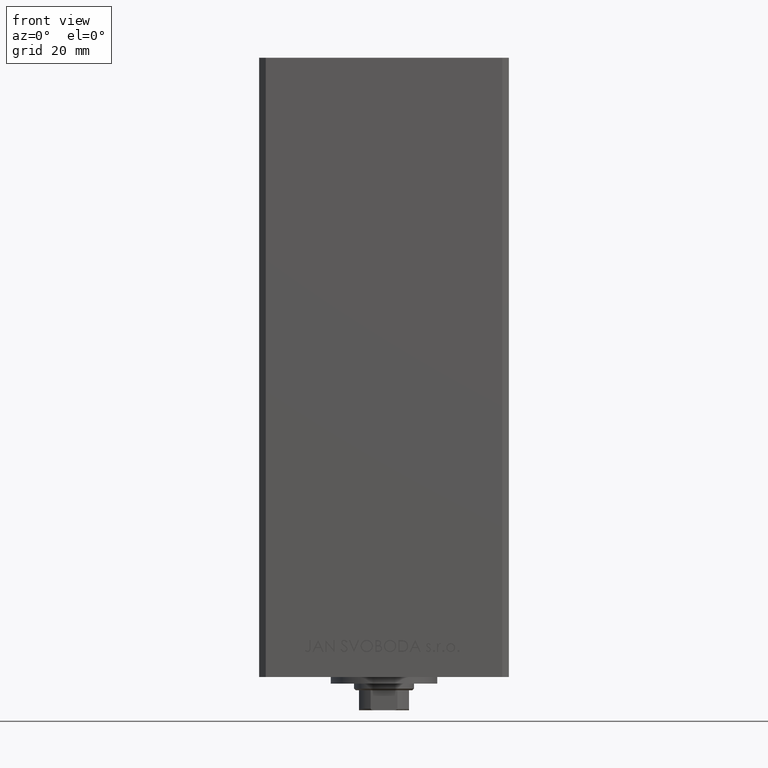
[diagram: clean part render]
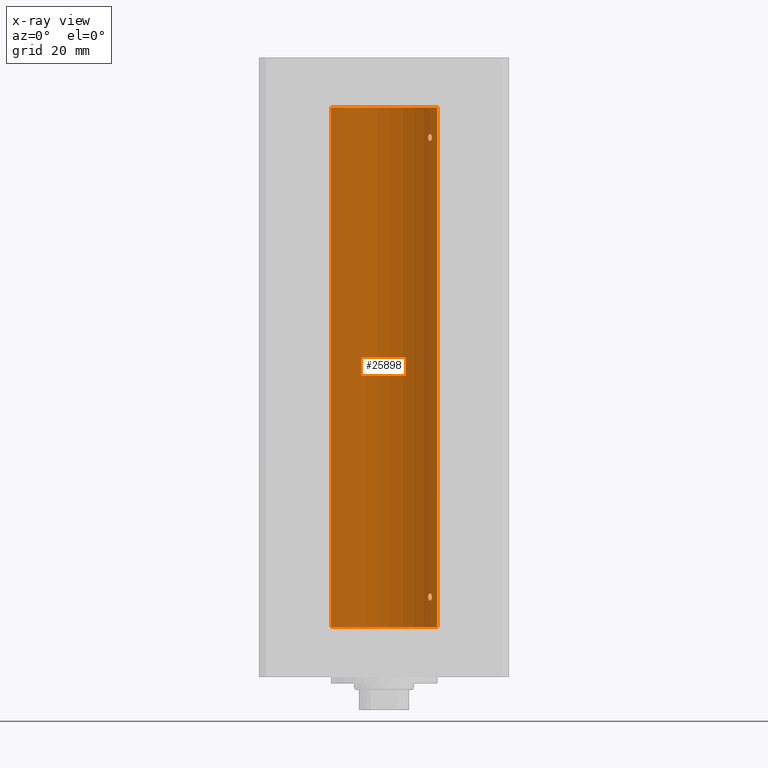
[diagram: x-ray — body ghosted, one internal face saturated and labeled with its STEP entity id]
A machine part, front view, then the same camera in x-ray: the body is ghosted and one INTERNAL B-rep face — a face not visible from any outside direction — is saturated and labeled: STEP entity #25898.
In plain terms, the highlighted cylindrical surface (partial cylindrical patch) has radius 16 mm, axis along (-0, -0, -1).
Its self-contained STEP definition (entity closure, byte-faithful):
#779 = VERTEX_POINT ( 'NONE', #909 ) ;
#909 = CARTESIAN_POINT ( 'NONE',  ( 14.38749456993875953, 6.999999999998769873, 8.999999999999467093 ) ) ;
#1133 = CARTESIAN_POINT ( 'NONE',  ( 13.55739033881265065, 8.499771822136686694, 9.902983336413296200 ) ) ;
#1275 = CARTESIAN_POINT ( 'NONE',  ( -16.00000000000000000, 0.000000000000000000, 156.0000000000000000 ) ) ;
#2039 = CARTESIAN_POINT ( 'NONE',  ( 13.32443414199769194, 8.857985377928093484, 146.4686058303161360 ) ) ;
#2091 = ORIENTED_EDGE ( 'NONE', *, *, #33092, .T. ) ;
#2278 = CARTESIAN_POINT ( 'NONE',  ( 14.38374727663542707, 7.007716049903077504, 146.8576079294365115 ) ) ;
#2762 = CARTESIAN_POINT ( 'NONE',  ( 13.77746685470184929, 8.136441676695655545, 146.0017131429554240 ) ) ;
#2853 = CARTESIAN_POINT ( 'NONE',  ( 13.37714181818049575, 8.778635597591465611, 8.359554766746297716 ) ) ;
#2965 = VECTOR ( 'NONE', #41372, 1000.000000000000000 ) ;
#3121 = EDGE_CURVE ( 'NONE', #779, #13682, #12109, .T. ) ;
#3208 = CYLINDRICAL_SURFACE ( 'NONE', #11624, 16.00000000000000000 ) ;
#3246 = ORIENTED_EDGE ( 'NONE', *, *, #34837, .F. ) ;
#3639 = CARTESIAN_POINT ( 'NONE',  ( 14.38749456993875775, 6.999999999998771649, 146.9999999999994600 ) ) ;
#4106 = CARTESIAN_POINT ( 'NONE',  ( 14.38749456993875775, 6.999999999998771649, 146.9999999999994600 ) ) ;
#5917 = VERTEX_POINT ( 'NONE', #42565 ) ;
#6016 = CARTESIAN_POINT ( 'NONE',  ( 14.35867515080208712, 7.058999333127631282, 146.6544211985381310 ) ) ;
#6340 = CARTESIAN_POINT ( 'NONE',  ( 14.27574973237574696, 7.225997637813494023, 8.353078210746339494 ) ) ;
#6501 = CARTESIAN_POINT ( 'NONE',  ( 13.22875655532295802, 8.999999999999998224, 146.8570262609357542 ) ) ;
#6565 = VERTEX_POINT ( 'NONE', #1275 ) ;
#7066 = CARTESIAN_POINT ( 'NONE',  ( 14.38749456993875953, 6.999999999998769873, 8.999999999999467093 ) ) ;
#7567 = CARTESIAN_POINT ( 'NONE',  ( 14.38749456993828879, 7.000000000000026645, 8.929291109518763037 ) ) ;
#7815 = CARTESIAN_POINT ( 'NONE',  ( 14.38374727663542707, 7.007716049903074840, 8.857607929436484895 ) ) ;
#7821 = CARTESIAN_POINT ( 'NONE',  ( 13.22875655532295092, 8.999999999999994671, 147.1426595155012649 ) ) ;
#8188 = DIRECTION ( 'NONE',  ( 1.000000000000000000, 0.000000000000000000, 0.000000000000000000 ) ) ;
#8368 = CARTESIAN_POINT ( 'NONE',  ( 14.12440581436493225, 7.519967855344579455, 9.916845667547992349 ) ) ;
#9333 = VERTEX_POINT ( 'NONE', #36156 ) ;
#9427 = DIRECTION ( 'NONE',  ( -0.000000000000000000, -0.000000000000000000, -1.000000000000000000 ) ) ;
#9596 = CARTESIAN_POINT ( 'NONE',  ( 13.98799506618804855, 7.768796316246572964, 8.018907818619863903 ) ) ;
#9815 = EDGE_LOOP ( 'NONE', ( #48901, #3246 ) ) ;
#10061 = B_SPLINE_CURVE_WITH_KNOTS ( 'NONE', 3,
 ( #4106, #37481, #26770, #41956, #48936, #45459, #19297, #15560, #34481, #37226, #25764, #11058, #7821, #23035 ),
 .UNSPECIFIED., .F., .F.,
 ( 4, 2, 2, 2, 2, 2, 4 ),
 ( 0.003377516961122441295, 0.003798778705083836419, 0.004220040449045231977, 0.005062563936968072532, 0.005905087424890913088, 0.006326349168852335100, 0.006747610912813756245 ),
 .UNSPECIFIED. ) ;
#10073 = CARTESIAN_POINT ( 'NONE',  ( 13.25010819131475159, 8.968783812673564171, 8.717198662283735189 ) ) ;
#10232 = CARTESIAN_POINT ( 'NONE',  ( 13.56526576050684518, 8.485384079562161119, 146.1169905381311196 ) ) ;
#10555 = CARTESIAN_POINT ( 'NONE',  ( 13.49787029139620920, 8.591848682074017418, 8.183814587142569152 ) ) ;
#11058 = CARTESIAN_POINT ( 'NONE',  ( 13.25022586032983618, 8.968609469449805971, 147.2832896389628843 ) ) ;
#11624 = AXIS2_PLACEMENT_3D ( 'NONE', #12365, #45061, #18647 ) ;
#12109 = B_SPLINE_CURVE_WITH_KNOTS ( 'NONE', 3,
 ( #31275, #38522, #24061, #16097, #31523, #8368, #46731, #46486, #1133, #35259, #42253, #16337, #39008, #42984 ),
 .UNSPECIFIED., .F., .F.,
 ( 4, 2, 2, 2, 2, 2, 4 ),
 ( 0.003377516961122438259, 0.003798778705083848996, 0.004220040449045259733, 0.005062563936968083808, 0.005905087424890908751, 0.006326349168852319488, 0.006747610912813730225 ),
 .UNSPECIFIED. ) ;
#12365 = CARTESIAN_POINT ( 'NONE',  ( 0.000000000000000000, 0.000000000000000000, 156.0000000000000000 ) ) ;
#12643 = CARTESIAN_POINT ( 'NONE',  ( 13.22875655532295447, 8.999999999999996447, 146.9999999999999716 ) ) ;
#12739 = EDGE_CURVE ( 'NONE', #5917, #9333, #18359, .T. ) ;
#12904 = CARTESIAN_POINT ( 'NONE',  ( 0.000000000000000000, 0.000000000000000000, 156.0000000000000000 ) ) ;
#13185 = LINE ( 'NONE', #43565, #39158 ) ;
#13682 = VERTEX_POINT ( 'NONE', #37850 ) ;
#13979 = CARTESIAN_POINT ( 'NONE',  ( 13.49787029139622696, 8.591848682073997878, 146.1838145871425354 ) ) ;
#14227 = LINE ( 'NONE', #25931, #2965 ) ;
#14644 = EDGE_CURVE ( 'NONE', #6565, #9333, #13185, .T. ) ;
#15560 = CARTESIAN_POINT ( 'NONE',  ( 13.70635209652259334, 8.259251269739747769, 147.9961002086728570 ) ) ;
#16097 = CARTESIAN_POINT ( 'NONE',  ( 14.31678893103186390, 7.143775209822729622, 9.534780048070684799 ) ) ;
#16160 = CARTESIAN_POINT ( 'NONE',  ( 0.000000000000000000, 0.000000000000000000, 0.000000000000000000 ) ) ;
#16337 = CARTESIAN_POINT ( 'NONE',  ( 13.25022586032984329, 8.968609469449802418, 9.283289638962903823 ) ) ;
#16631 = DIRECTION ( 'NONE',  ( -0.000000000000000000, 0.000000000000000000, 1.000000000000000000 ) ) ;
#17075 = CARTESIAN_POINT ( 'NONE',  ( 13.22875655532296157, 9.000000000000000000, 8.857026260935734641 ) ) ;
#17565 = CARTESIAN_POINT ( 'NONE',  ( 14.17516445690067428, 7.421373518623910037, 8.173695665549439937 ) ) ;
#18359 = CIRCLE ( 'NONE', #23972, 16.00000000000000000 ) ;
#18534 = CARTESIAN_POINT ( 'NONE',  ( 14.35867515080208356, 7.058999333127636611, 8.654421198538130966 ) ) ;
#18647 = DIRECTION ( 'NONE',  ( -1.000000000000000000, 0.000000000000000000, 0.000000000000000000 ) ) ;
#19297 = CARTESIAN_POINT ( 'NONE',  ( 13.98853479819182866, 7.771757428685186042, 148.0036593920346775 ) ) ;
#19529 = CIRCLE ( 'NONE', #44189, 16.00000000000000000 ) ;
#21051 = EDGE_LOOP ( 'NONE', ( #22993, #37874 ) ) ;
#21219 = CARTESIAN_POINT ( 'NONE',  ( 14.36932461189096877, 7.037242368448795915, 146.7207139776694476 ) ) ;
#21543 = CARTESIAN_POINT ( 'NONE',  ( 13.22875655532295447, 8.999999999999998224, 8.999999999999994671 ) ) ;
#21697 = CARTESIAN_POINT ( 'NONE',  ( 13.70633586603035781, 8.255576010093792050, 146.0253286105015036 ) ) ;
#22026 = CARTESIAN_POINT ( 'NONE',  ( 13.77746685470184040, 8.136441676695669756, 8.001713142955473757 ) ) ;
#22993 = ORIENTED_EDGE ( 'NONE', *, *, #41192, .F. ) ;
#23035 = CARTESIAN_POINT ( 'NONE',  ( 13.22875655532295447, 8.999999999999996447, 146.9999999999999716 ) ) ;
#23672 = EDGE_LOOP ( 'NONE', ( #48303, #2091, #31631, #30962 ) ) ;
#23972 = AXIS2_PLACEMENT_3D ( 'NONE', #16160, #27128, #8188 ) ;
#24061 = CARTESIAN_POINT ( 'NONE',  ( 14.37260515874679534, 7.030802976542521954, 9.282431798581109561 ) ) ;
#24810 = CARTESIAN_POINT ( 'NONE',  ( 14.11701305531884287, 7.531808851198022126, 8.107366783090686368 ) ) ;
#24956 = CARTESIAN_POINT ( 'NONE',  ( 14.31615587311060978, 7.145052533203036127, 146.4626987052745619 ) ) ;
#25764 = CARTESIAN_POINT ( 'NONE',  ( 13.32447566991143617, 8.857922402414489582, 147.5314381199037825 ) ) ;
#25898 = ADVANCED_FACE ( 'NONE', ( #45566, #27317, #49043 ), #3208, .F. ) ;
#25931 = CARTESIAN_POINT ( 'NONE',  ( 16.00000000000000000, 1.959434878635765131E-15, 156.0000000000000000 ) ) ;
#26427 = CARTESIAN_POINT ( 'NONE',  ( 14.38749456993875775, 6.999999999998771649, 146.9999999999994600 ) ) ;
#26770 = CARTESIAN_POINT ( 'NONE',  ( 14.37260515874679179, 7.030802976542521954, 147.2824317985810865 ) ) ;
#27128 = DIRECTION ( 'NONE',  ( -0.000000000000000000, 0.000000000000000000, 1.000000000000000000 ) ) ;
#27317 = FACE_BOUND ( 'NONE', #9815, .T. ) ;
#28541 = CARTESIAN_POINT ( 'NONE',  ( 13.32443414199768839, 8.857985377928104143, 8.468605830316136007 ) ) ;
#29177 = CARTESIAN_POINT ( 'NONE',  ( 13.92009581174527355, 7.889943515799701323, 145.9984609092137759 ) ) ;
#30962 = ORIENTED_EDGE ( 'NONE', *, *, #12739, .F. ) ;
#31275 = CARTESIAN_POINT ( 'NONE',  ( 14.38749456993875953, 6.999999999998769873, 8.999999999999467093 ) ) ;
#31523 = CARTESIAN_POINT ( 'NONE',  ( 14.27601081693604712, 7.225489892961965310, 9.646446674983275571 ) ) ;
#31576 = DIRECTION ( 'NONE',  ( 1.000000000000000000, 0.000000000000000000, 0.000000000000000000 ) ) ;
#31631 = ORIENTED_EDGE ( 'NONE', *, *, #14644, .T. ) ;
#32419 = CARTESIAN_POINT ( 'NONE',  ( 13.37714181818050641, 8.778635597591444295, 146.3595547667462995 ) ) ;
#32896 = CARTESIAN_POINT ( 'NONE',  ( 13.25010819131476048, 8.968783812673557065, 146.7171986622837210 ) ) ;
#33092 = EDGE_CURVE ( 'NONE', #38261, #6565, #19529, .T. ) ;
#33141 = CARTESIAN_POINT ( 'NONE',  ( 13.98799506618805211, 7.768796316246563194, 146.0189078186198799 ) ) ;
#33716 = CARTESIAN_POINT ( 'NONE',  ( 14.36932461189096877, 7.037242368448794139, 8.720713977669424466 ) ) ;
#34481 = CARTESIAN_POINT ( 'NONE',  ( 13.55739033881264710, 8.499771822136690247, 147.9029833364132855 ) ) ;
#34837 = EDGE_CURVE ( 'NONE', #38583, #48323, #10061, .T. ) ;
#35259 = CARTESIAN_POINT ( 'NONE',  ( 13.37722806521492025, 8.778496895713756132, 9.640492215702138878 ) ) ;
#36156 = CARTESIAN_POINT ( 'NONE',  ( -16.00000000000000000, 0.000000000000000000, 0.000000000000000000 ) ) ;
#36164 = CARTESIAN_POINT ( 'NONE',  ( 13.22875655532295447, 8.999999999999996447, 146.9999999999999716 ) ) ;
#37220 = CARTESIAN_POINT ( 'NONE',  ( 13.92009581174526822, 7.889943515799717311, 7.998460909213807035 ) ) ;
#37226 = CARTESIAN_POINT ( 'NONE',  ( 13.37722806521492203, 8.778496895713763237, 147.6404922157021247 ) ) ;
#37481 = CARTESIAN_POINT ( 'NONE',  ( 14.38749456993835807, 6.999999999999900524, 147.1411069770374809 ) ) ;
#37850 = CARTESIAN_POINT ( 'NONE',  ( 13.22875655532295447, 8.999999999999998224, 8.999999999999994671 ) ) ;
#37874 = ORIENTED_EDGE ( 'NONE', *, *, #3121, .F. ) ;
#38261 = VERTEX_POINT ( 'NONE', #44627 ) ;
#38263 = EDGE_CURVE ( 'NONE', #38261, #5917, #14227, .T. ) ;
#38522 = CARTESIAN_POINT ( 'NONE',  ( 14.38749456993835807, 6.999999999999894307, 9.141106977037484427 ) ) ;
#38583 = VERTEX_POINT ( 'NONE', #3639 ) ;
#39008 = CARTESIAN_POINT ( 'NONE',  ( 13.22875655532295625, 9.000000000000000000, 9.142659515501296852 ) ) ;
#39158 = VECTOR ( 'NONE', #9427, 1000.000000000000000 ) ;
#39997 = CARTESIAN_POINT ( 'NONE',  ( 13.56526576050683452, 8.485384079562178883, 8.116990538131117816 ) ) ;
#40151 = CARTESIAN_POINT ( 'NONE',  ( 14.11701305531884465, 7.531808851198014132, 146.1073667830907254 ) ) ;
#40469 = CARTESIAN_POINT ( 'NONE',  ( 13.70633586603034715, 8.255576010093811590, 8.025328610501505366 ) ) ;
#41106 = CARTESIAN_POINT ( 'NONE',  ( 14.38749456993829057, 7.000000000000029310, 146.9292911095188003 ) ) ;
#41192 = EDGE_CURVE ( 'NONE', #13682, #779, #41830, .T. ) ;
#41303 = B_SPLINE_CURVE_WITH_KNOTS ( 'NONE', 3,
 ( #36164, #6501, #32896, #2039, #32419, #13979, #10232, #21697, #2762, #29177, #33141, #40151, #48352, #47630, #24956, #6016, #21219, #2278, #41106, #26427 ),
 .UNSPECIFIED., .F., .F.,
 ( 4, 2, 2, 2, 2, 2, 2, 2, 2, 4 ),
 ( 2.818592028051833686E-17, 0.0004221896201403299359, 0.0008443792402806316825, 0.001266568860420933538, 0.001688758480561235176, 0.002110948100701536597, 0.002533137720841838886, 0.002955327340982140307, 0.003166422151052290801, 0.003377516961122441295 ),
 .UNSPECIFIED. ) ;
#41372 = DIRECTION ( 'NONE',  ( -0.000000000000000000, -0.000000000000000000, -1.000000000000000000 ) ) ;
#41830 = B_SPLINE_CURVE_WITH_KNOTS ( 'NONE', 3,
 ( #21543, #17075, #10073, #28541, #2853, #10555, #39997, #40469, #22026, #37220, #9596, #24810, #17565, #6340, #42206, #18534, #33716, #7815, #7567, #7066 ),
 .UNSPECIFIED., .F., .F.,
 ( 4, 2, 2, 2, 2, 2, 2, 2, 2, 4 ),
 ( 0.000000000000000000, 0.0004221896201403055413, 0.0008443792402806110826, 0.001266568860420916624, 0.001688758480561222165, 0.002110948100701527490, 0.002533137720841833248, 0.002955327340982138572, 0.003166422151052288633, 0.003377516961122438259 ),
 .UNSPECIFIED. ) ;
#41956 = CARTESIAN_POINT ( 'NONE',  ( 14.31678893103185679, 7.143775209822727845, 147.5347800480706439 ) ) ;
#42206 = CARTESIAN_POINT ( 'NONE',  ( 14.31615587311060445, 7.145052533203043232, 8.462698705274526390 ) ) ;
#42253 = CARTESIAN_POINT ( 'NONE',  ( 13.32447566991143439, 8.857922402414480700, 9.531438119903825168 ) ) ;
#42565 = CARTESIAN_POINT ( 'NONE',  ( 16.00000000000000000, 1.959434878635765131E-15, 0.000000000000000000 ) ) ;
#42984 = CARTESIAN_POINT ( 'NONE',  ( 13.22875655532295447, 8.999999999999998224, 8.999999999999994671 ) ) ;
#43565 = CARTESIAN_POINT ( 'NONE',  ( -16.00000000000000000, 0.000000000000000000, 156.0000000000000000 ) ) ;
#44189 = AXIS2_PLACEMENT_3D ( 'NONE', #12904, #16631, #31576 ) ;
#44627 = CARTESIAN_POINT ( 'NONE',  ( 16.00000000000000000, 1.959434878635765131E-15, 156.0000000000000000 ) ) ;
#45061 = DIRECTION ( 'NONE',  ( -0.000000000000000000, -0.000000000000000000, -1.000000000000000000 ) ) ;
#45459 = CARTESIAN_POINT ( 'NONE',  ( 14.12440581436492515, 7.519967855344591001, 147.9168456675480172 ) ) ;
#45566 = FACE_OUTER_BOUND ( 'NONE', #23672, .T. ) ;
#46486 = CARTESIAN_POINT ( 'NONE',  ( 13.70635209652260222, 8.259251269739738888, 9.996100208672867637 ) ) ;
#46731 = CARTESIAN_POINT ( 'NONE',  ( 13.98853479819183043, 7.771757428685174496, 10.00365939203466681 ) ) ;
#47630 = CARTESIAN_POINT ( 'NONE',  ( 14.27574973237574874, 7.225997637813491359, 146.3530782107463608 ) ) ;
#48303 = ORIENTED_EDGE ( 'NONE', *, *, #38263, .F. ) ;
#48323 = VERTEX_POINT ( 'NONE', #12643 ) ;
#48352 = CARTESIAN_POINT ( 'NONE',  ( 14.17516445690067250, 7.421373518623910037, 146.1736956655494168 ) ) ;
#48655 = EDGE_CURVE ( 'NONE', #48323, #38583, #41303, .T. ) ;
#48901 = ORIENTED_EDGE ( 'NONE', *, *, #48655, .F. ) ;
#48936 = CARTESIAN_POINT ( 'NONE',  ( 14.27601081693604179, 7.225489892961972416, 147.6464466749832809 ) ) ;
#49043 = FACE_BOUND ( 'NONE', #21051, .T. ) ;